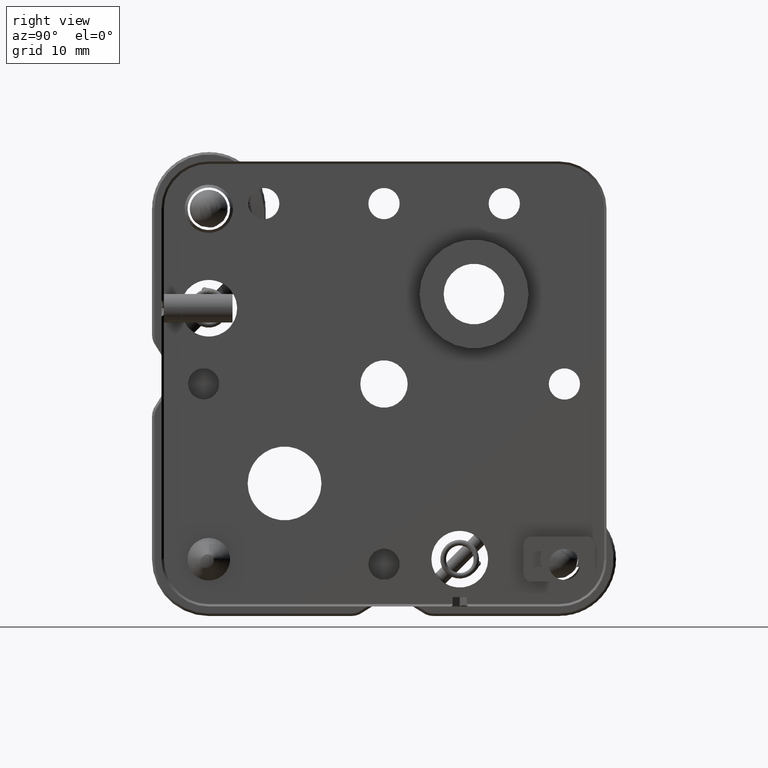
[diagram: clean part render]
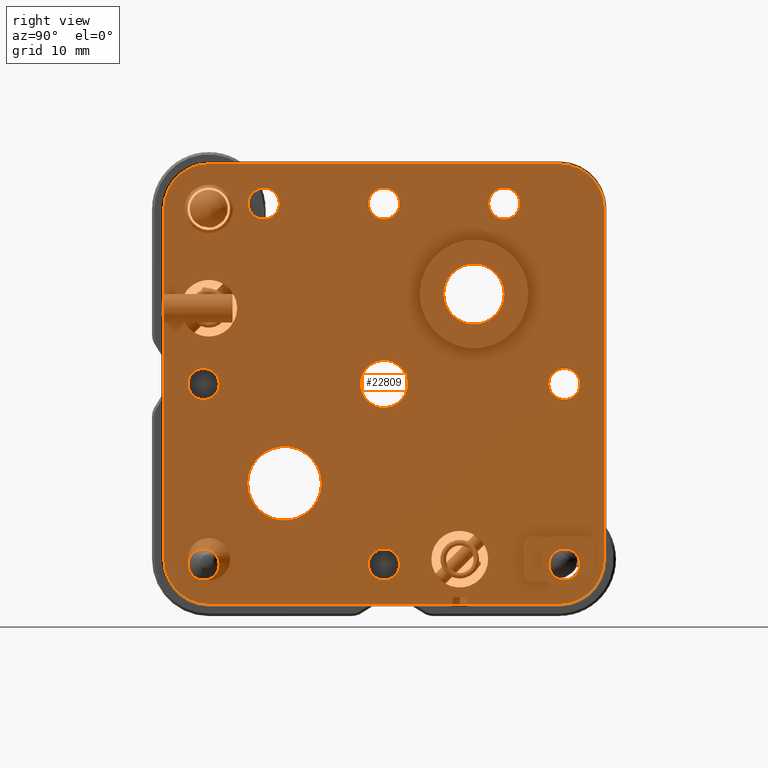
[diagram: same view with one face highlighted and labeled with its STEP entity id]
A machine part, right view. The second image highlights one B-rep face of the part: STEP entity #22809.
In plain terms, the highlighted planar face has unit normal (-1, 0, 0).
Its self-contained STEP definition (entity closure, byte-faithful):
#46 = CARTESIAN_POINT ( 'NONE',  ( 16.49606781186547622, -2.312573812038260277E-14, -19.05000000000001137 ) ) ;
#281 = CIRCLE ( 'NONE', #17914, 1.649999999999993472 ) ;
#306 = FACE_BOUND ( 'NONE', #23714, .T. ) ;
#361 = VERTEX_POINT ( 'NONE', #3499 ) ;
#395 = DIRECTION ( 'NONE',  ( 0.000000000000000000, 1.000000000000000000, 0.000000000000000000 ) ) ;
#663 = EDGE_CURVE ( 'NONE', #20995, #20995, #281, .T. ) ;
#1081 = FACE_BOUND ( 'NONE', #27363, .T. ) ;
#1296 = CIRCLE ( 'NONE', #4339, 1.649999999999991696 ) ;
#1429 = ORIENTED_EDGE ( 'NONE', *, *, #21274, .T. ) ;
#1528 = CARTESIAN_POINT ( 'NONE',  ( 16.49606781186546911, -19.05000000000002203, -19.04999999999999361 ) ) ;
#1572 = VERTEX_POINT ( 'NONE', #20653 ) ;
#1841 = CARTESIAN_POINT ( 'NONE',  ( 16.49606781186547977, 19.04999999999997939, -19.04999999999998650 ) ) ;
#2199 = CARTESIAN_POINT ( 'NONE',  ( 16.49606781186546911, -17.40000000000002700, 9.000371959649941786E-15 ) ) ;
#2324 = CIRCLE ( 'NONE', #29435, 1.649999999999993472 ) ;
#2622 = DIRECTION ( 'NONE',  ( 1.000000000000000000, -3.329283005738959424E-16, -6.793094355065668215E-18 ) ) ;
#2789 = EDGE_CURVE ( 'NONE', #8999, #8999, #27521, .T. ) ;
#2831 = ORIENTED_EDGE ( 'NONE', *, *, #9739, .T. ) ;
#2938 = CARTESIAN_POINT ( 'NONE',  ( 16.49606781186548332, 19.04999999999998295, 5.404725120062479417E-16 ) ) ;
#2956 = EDGE_CURVE ( 'NONE', #28841, #28841, #24019, .T. ) ;
#3093 = DIRECTION ( 'NONE',  ( 1.000000000000000000, -3.329283005738959424E-16, -6.793094355065668215E-18 ) ) ;
#3387 = DIRECTION ( 'NONE',  ( 0.000000000000000000, -1.000000000000000000, 0.000000000000000000 ) ) ;
#3405 = EDGE_CURVE ( 'NONE', #18625, #18625, #3864, .T. ) ;
#3420 = DIRECTION ( 'NONE',  ( 0.000000000000000000, -1.000000000000000000, 0.000000000000000000 ) ) ;
#3499 = CARTESIAN_POINT ( 'NONE',  ( 16.49606781186865234, 18.49999999999998579, 23.24999999997225686 ) ) ;
#3638 = AXIS2_PLACEMENT_3D ( 'NONE', #46, #24325, #19295 ) ;
#3808 = EDGE_LOOP ( 'NONE', ( #28890 ) ) ;
#3844 = VECTOR ( 'NONE', #22414, 1000.000000000000000 ) ;
#3864 = CIRCLE ( 'NONE', #23507, 1.649999999999991696 ) ;
#4102 = EDGE_LOOP ( 'NONE', ( #18049 ) ) ;
#4225 = CARTESIAN_POINT ( 'NONE',  ( 16.49606781186548332, 20.69999999999997442, 5.404725120062479417E-16 ) ) ;
#4339 = AXIS2_PLACEMENT_3D ( 'NONE', #2938, #3093, #15084 ) ;
#4618 = DIRECTION ( 'NONE',  ( 0.000000000000000000, -1.000000000000000000, 0.000000000000000000 ) ) ;
#5022 = FACE_BOUND ( 'NONE', #11600, .T. ) ;
#5091 = EDGE_LOOP ( 'NONE', ( #6966 ) ) ;
#5140 = CARTESIAN_POINT ( 'NONE',  ( 16.49606781188433402, -23.24999999998115285, -18.49999999999998934 ) ) ;
#5196 = CIRCLE ( 'NONE', #22848, 1.649999999999993028 ) ;
#5686 = CARTESIAN_POINT ( 'NONE',  ( 16.49606781186547266, -1.889578839656075383E-14, -23.24999999999999645 ) ) ;
#5759 = EDGE_LOOP ( 'NONE', ( #17986 ) ) ;
#5870 = DIRECTION ( 'NONE',  ( 0.000000000000000000, 1.000000000000000000, 0.000000000000000000 ) ) ;
#6003 = LINE ( 'NONE', #22581, #13199 ) ;
#6115 = PLANE ( 'NONE',  #17378 ) ;
#6155 = DIRECTION ( 'NONE',  ( 3.329283005738955973E-16, 1.000000000000000000, -0.000000000000000000 ) ) ;
#6329 = ORIENTED_EDGE ( 'NONE', *, *, #9911, .T. ) ;
#6594 = ORIENTED_EDGE ( 'NONE', *, *, #20499, .T. ) ;
#6939 = VERTEX_POINT ( 'NONE', #27989 ) ;
#6966 = ORIENTED_EDGE ( 'NONE', *, *, #3405, .T. ) ;
#7056 = ORIENTED_EDGE ( 'NONE', *, *, #8912, .T. ) ;
#7289 = VECTOR ( 'NONE', #20391, 1000.000000000000000 ) ;
#8014 = CARTESIAN_POINT ( 'NONE',  ( 16.49606781186547266, -1.889578839656075383E-14, 4.770422235828094420E-15 ) ) ;
#8150 = AXIS2_PLACEMENT_3D ( 'NONE', #18836, #13936, #3420 ) ;
#8260 = ORIENTED_EDGE ( 'NONE', *, *, #14927, .T. ) ;
#8331 = VERTEX_POINT ( 'NONE', #25049 ) ;
#8391 = AXIS2_PLACEMENT_3D ( 'NONE', #1841, #25962, #21082 ) ;
#8580 = EDGE_LOOP ( 'NONE', ( #13811 ) ) ;
#8904 = AXIS2_PLACEMENT_3D ( 'NONE', #11758, #19184, #23607 ) ;
#8912 = EDGE_CURVE ( 'NONE', #23798, #361, #6003, .T. ) ;
#8999 = VERTEX_POINT ( 'NONE', #14186 ) ;
#9028 = DIRECTION ( 'NONE',  ( 1.000000000000000000, -3.329283005738959424E-16, -6.793094355065668215E-18 ) ) ;
#9084 = EDGE_LOOP ( 'NONE', ( #23426 ) ) ;
#9354 = EDGE_CURVE ( 'NONE', #361, #20872, #9666, .T. ) ;
#9612 = FACE_BOUND ( 'NONE', #4102, .T. ) ;
#9666 = CIRCLE ( 'NONE', #8150, 4.749999999944520823 ) ;
#9739 = EDGE_CURVE ( 'NONE', #12598, #12598, #29820, .T. ) ;
#9740 = CIRCLE ( 'NONE', #21345, 3.899999999999999911 ) ;
#9771 = FACE_BOUND ( 'NONE', #8580, .T. ) ;
#9911 = EDGE_CURVE ( 'NONE', #17569, #23798, #16296, .T. ) ;
#10090 = DIRECTION ( 'NONE',  ( 0.000000000000000000, 1.000000000000000000, 0.000000000000000000 ) ) ;
#10134 = EDGE_CURVE ( 'NONE', #17490, #17490, #13730, .T. ) ;
#10768 = AXIS2_PLACEMENT_3D ( 'NONE', #26227, #11719, #4618 ) ;
#10806 = DIRECTION ( 'NONE',  ( -1.000000000000000000, 3.469446952047667116E-16, 6.018531076536426284E-32 ) ) ;
#10887 = EDGE_CURVE ( 'NONE', #6939, #23884, #20289, .T. ) ;
#11333 = CIRCLE ( 'NONE', #12336, 4.749999999944520823 ) ;
#11600 = EDGE_LOOP ( 'NONE', ( #6594 ) ) ;
#11717 = CARTESIAN_POINT ( 'NONE',  ( 16.49606781186706783, 23.24999999999839417, 18.49999999999999645 ) ) ;
#11719 = DIRECTION ( 'NONE',  ( -1.000000000000000000, 3.469446951984229881E-16, 0.000000000000000000 ) ) ;
#11758 = CARTESIAN_POINT ( 'NONE',  ( 16.49606781186547977, 9.499999999999982236, 9.500000000000003553 ) ) ;
#12121 = FACE_BOUND ( 'NONE', #26108, .T. ) ;
#12284 = FACE_BOUND ( 'NONE', #3808, .T. ) ;
#12285 = CARTESIAN_POINT ( 'NONE',  ( 16.49606781186546911, -17.40000000000002345, -19.04999999999999361 ) ) ;
#12336 = AXIS2_PLACEMENT_3D ( 'NONE', #15060, #10806, #3387 ) ;
#12449 = EDGE_CURVE ( 'NONE', #24739, #24739, #25832, .T. ) ;
#12598 = VERTEX_POINT ( 'NONE', #26632 ) ;
#12653 = CARTESIAN_POINT ( 'NONE',  ( 16.49606781186547266, -1.889578839656075383E-14, 4.770422235828094420E-15 ) ) ;
#13199 = VECTOR ( 'NONE', #6155, 1000.000000000000000 ) ;
#13303 = EDGE_LOOP ( 'NONE', ( #28068 ) ) ;
#13531 = CARTESIAN_POINT ( 'NONE',  ( 16.49606781188434113, -18.50000000000001066, 23.24999999998112088 ) ) ;
#13730 = CIRCLE ( 'NONE', #28815, 2.499999999999998668 ) ;
#13811 = ORIENTED_EDGE ( 'NONE', *, *, #24575, .T. ) ;
#13936 = DIRECTION ( 'NONE',  ( -1.000000000000000000, 3.469446952047659228E-16, 6.018531076536395630E-32 ) ) ;
#14024 = ORIENTED_EDGE ( 'NONE', *, *, #28806, .T. ) ;
#14052 = DIRECTION ( 'NONE',  ( -1.000000000000000000, 3.469446951984244672E-16, 0.000000000000000000 ) ) ;
#14186 = CARTESIAN_POINT ( 'NONE',  ( 16.49606781186547977, 20.69999999999997797, -19.04999999999998650 ) ) ;
#14218 = AXIS2_PLACEMENT_3D ( 'NONE', #26041, #14052, #21314 ) ;
#14276 = VECTOR ( 'NONE', #28802, 1000.000000000000000 ) ;
#14393 = ORIENTED_EDGE ( 'NONE', *, *, #9354, .T. ) ;
#14608 = LINE ( 'NONE', #19356, #14276 ) ;
#14696 = EDGE_CURVE ( 'NONE', #17167, #17167, #9740, .T. ) ;
#14927 = EDGE_CURVE ( 'NONE', #20872, #1572, #14608, .T. ) ;
#15060 = CARTESIAN_POINT ( 'NONE',  ( 16.49606781186863813, 18.49999999999996803, -18.50000000000000355 ) ) ;
#15084 = DIRECTION ( 'NONE',  ( 0.000000000000000000, 1.000000000000000000, 0.000000000000000000 ) ) ;
#15659 = EDGE_LOOP ( 'NONE', ( #8260, #14024, #23852, #25000, #1429, #6329, #7056, #14393 ) ) ;
#15789 = CARTESIAN_POINT ( 'NONE',  ( 16.49606781186863813, 18.49999999999996803, -23.24999999997225686 ) ) ;
#15885 = DIRECTION ( 'NONE',  ( 1.000000000000000000, -3.329283005738959424E-16, -6.793094355065668215E-18 ) ) ;
#16242 = CARTESIAN_POINT ( 'NONE',  ( 16.49606781186547266, -11.05000000000002203, 19.05000000000002203 ) ) ;
#16296 = CIRCLE ( 'NONE', #10768, 4.750000000001367795 ) ;
#16403 = CARTESIAN_POINT ( 'NONE',  ( 16.49606781186547977, 6.299999999999983835, 9.500000000000003553 ) ) ;
#17070 = LINE ( 'NONE', #27154, #7289 ) ;
#17086 = VERTEX_POINT ( 'NONE', #15789 ) ;
#17167 = VERTEX_POINT ( 'NONE', #17638 ) ;
#17378 = AXIS2_PLACEMENT_3D ( 'NONE', #8014, #22221, #20331 ) ;
#17490 = VERTEX_POINT ( 'NONE', #20025 ) ;
#17569 = VERTEX_POINT ( 'NONE', #29003 ) ;
#17638 = CARTESIAN_POINT ( 'NONE',  ( 16.49606781186547266, -6.600000000000030731, -10.49999999999999645 ) ) ;
#17914 = AXIS2_PLACEMENT_3D ( 'NONE', #18329, #20850, #28094 ) ;
#17986 = ORIENTED_EDGE ( 'NONE', *, *, #2789, .T. ) ;
#18049 = ORIENTED_EDGE ( 'NONE', *, *, #14696, .T. ) ;
#18329 = CARTESIAN_POINT ( 'NONE',  ( 16.49606781186547266, -12.70000000000001528, 19.05000000000002203 ) ) ;
#18625 = VERTEX_POINT ( 'NONE', #2199 ) ;
#18836 = CARTESIAN_POINT ( 'NONE',  ( 16.49606781186865234, 18.49999999999998224, 18.49999999999999645 ) ) ;
#19184 = DIRECTION ( 'NONE',  ( 1.000000000000000000, -3.329283005738959424E-16, -6.793094355065668215E-18 ) ) ;
#19295 = DIRECTION ( 'NONE',  ( 0.000000000000000000, 1.000000000000000000, 0.000000000000000000 ) ) ;
#19356 = CARTESIAN_POINT ( 'NONE',  ( 16.49606781186547977, 23.24999999999997513, 4.770422235828094420E-15 ) ) ;
#19551 = FACE_BOUND ( 'NONE', #9084, .T. ) ;
#19859 = FACE_OUTER_BOUND ( 'NONE', #15659, .T. ) ;
#20025 = CARTESIAN_POINT ( 'NONE',  ( 16.49606781186547266, 2.499999999999979572, 4.770422235828094420E-15 ) ) ;
#20289 = CIRCLE ( 'NONE', #14218, 4.750000000001364242 ) ;
#20331 = DIRECTION ( 'NONE',  ( -3.329283005738955973E-16, -1.000000000000000000, 0.000000000000000000 ) ) ;
#20391 = DIRECTION ( 'NONE',  ( 6.793094355065668215E-18, -2.261613359270136103E-33, 1.000000000000000000 ) ) ;
#20499 = EDGE_CURVE ( 'NONE', #8331, #8331, #5196, .T. ) ;
#20579 = ORIENTED_EDGE ( 'NONE', *, *, #10134, .T. ) ;
#20653 = CARTESIAN_POINT ( 'NONE',  ( 16.49606781186863813, 23.24999999997223199, -18.50000000000000355 ) ) ;
#20850 = DIRECTION ( 'NONE',  ( 1.000000000000000000, -3.329283005738959424E-16, -6.793094355065668215E-18 ) ) ;
#20872 = VERTEX_POINT ( 'NONE', #11717 ) ;
#20995 = VERTEX_POINT ( 'NONE', #16242 ) ;
#21082 = DIRECTION ( 'NONE',  ( 0.000000000000000000, 1.000000000000000000, 0.000000000000000000 ) ) ;
#21103 = DIRECTION ( 'NONE',  ( 0.000000000000000000, 1.000000000000000000, 0.000000000000000000 ) ) ;
#21253 = CARTESIAN_POINT ( 'NONE',  ( 16.49606781186547266, -10.50000000000003020, -10.49999999999999645 ) ) ;
#21257 = VERTEX_POINT ( 'NONE', #4225 ) ;
#21274 = EDGE_CURVE ( 'NONE', #23884, #17569, #17070, .T. ) ;
#21314 = DIRECTION ( 'NONE',  ( 0.000000000000000000, -1.000000000000000000, 0.000000000000000000 ) ) ;
#21345 = AXIS2_PLACEMENT_3D ( 'NONE', #21253, #2622, #21103 ) ;
#21752 = FACE_BOUND ( 'NONE', #5091, .T. ) ;
#22221 = DIRECTION ( 'NONE',  ( -1.000000000000000000, 3.329283005738955973E-16, 6.793094355065668215E-18 ) ) ;
#22414 = DIRECTION ( 'NONE',  ( -3.329283005738955973E-16, -1.000000000000000000, 0.000000000000000000 ) ) ;
#22581 = CARTESIAN_POINT ( 'NONE',  ( 16.49606781186547266, -1.889578839656075383E-14, 23.24999999999999645 ) ) ;
#22809 = ADVANCED_FACE ( 'NONE', ( #23966, #9612, #19551, #12121, #21752, #9771, #12284, #26631, #5022, #306, #1081, #19859 ), #6115, .T. ) ;
#22848 = AXIS2_PLACEMENT_3D ( 'NONE', #29083, #24359, #395 ) ;
#23426 = ORIENTED_EDGE ( 'NONE', *, *, #12449, .T. ) ;
#23507 = AXIS2_PLACEMENT_3D ( 'NONE', #24276, #24745, #10090 ) ;
#23547 = DIRECTION ( 'NONE',  ( 0.000000000000000000, 1.000000000000000000, 0.000000000000000000 ) ) ;
#23607 = DIRECTION ( 'NONE',  ( 0.000000000000000000, -1.000000000000000000, 0.000000000000000000 ) ) ;
#23631 = CARTESIAN_POINT ( 'NONE',  ( 16.49606781186547977, 14.34999999999997655, 19.05000000000001492 ) ) ;
#23714 = EDGE_LOOP ( 'NONE', ( #20579 ) ) ;
#23798 = VERTEX_POINT ( 'NONE', #13531 ) ;
#23852 = ORIENTED_EDGE ( 'NONE', *, *, #26794, .T. ) ;
#23884 = VERTEX_POINT ( 'NONE', #5140 ) ;
#23966 = FACE_BOUND ( 'NONE', #5759, .T. ) ;
#24019 = CIRCLE ( 'NONE', #8904, 3.199999999999998845 ) ;
#24276 = CARTESIAN_POINT ( 'NONE',  ( 16.49606781186546911, -19.05000000000001847, 9.000371959649941786E-15 ) ) ;
#24325 = DIRECTION ( 'NONE',  ( 1.000000000000000000, -3.329283005738959424E-16, -6.793094355065668215E-18 ) ) ;
#24359 = DIRECTION ( 'NONE',  ( 1.000000000000000000, -3.329283005738959424E-16, -6.793094355065668215E-18 ) ) ;
#24575 = EDGE_CURVE ( 'NONE', #21257, #21257, #1296, .T. ) ;
#24739 = VERTEX_POINT ( 'NONE', #12285 ) ;
#24745 = DIRECTION ( 'NONE',  ( 1.000000000000000000, -3.329283005738959424E-16, -6.793094355065668215E-18 ) ) ;
#25000 = ORIENTED_EDGE ( 'NONE', *, *, #10887, .T. ) ;
#25049 = CARTESIAN_POINT ( 'NONE',  ( 16.49606781186547622, 1.649999999999978373, 19.05000000000001847 ) ) ;
#25333 = AXIS2_PLACEMENT_3D ( 'NONE', #1528, #15885, #30541 ) ;
#25742 = CARTESIAN_POINT ( 'NONE',  ( 16.49606781186547977, 12.69999999999998330, 19.05000000000001492 ) ) ;
#25832 = CIRCLE ( 'NONE', #25333, 1.649999999999998579 ) ;
#25962 = DIRECTION ( 'NONE',  ( 1.000000000000000000, -3.329283005738959424E-16, -6.793094355065668215E-18 ) ) ;
#26041 = CARTESIAN_POINT ( 'NONE',  ( 16.49606781190319893, -18.50000000000003197, -18.49999999999999289 ) ) ;
#26108 = EDGE_LOOP ( 'NONE', ( #2831 ) ) ;
#26227 = CARTESIAN_POINT ( 'NONE',  ( 16.49606781190321669, -18.50000000000001066, 18.50000000000000355 ) ) ;
#26454 = EDGE_CURVE ( 'NONE', #28189, #28189, #2324, .T. ) ;
#26515 = LINE ( 'NONE', #5686, #3844 ) ;
#26631 = FACE_BOUND ( 'NONE', #13303, .T. ) ;
#26632 = CARTESIAN_POINT ( 'NONE',  ( 16.49606781186547622, 1.649999999999969935, -19.05000000000001137 ) ) ;
#26794 = EDGE_CURVE ( 'NONE', #17086, #6939, #26515, .T. ) ;
#27154 = CARTESIAN_POINT ( 'NONE',  ( 16.49606781186546556, -23.25000000000002487, 4.770422235828094420E-15 ) ) ;
#27311 = DIRECTION ( 'NONE',  ( 1.000000000000000000, -3.329283005738959424E-16, -6.793094355065668215E-18 ) ) ;
#27363 = EDGE_LOOP ( 'NONE', ( #29802 ) ) ;
#27521 = CIRCLE ( 'NONE', #8391, 1.649999999999998579 ) ;
#27989 = CARTESIAN_POINT ( 'NONE',  ( 16.49606781190366434, -18.50000000000002842, -23.24999999999112532 ) ) ;
#28068 = ORIENTED_EDGE ( 'NONE', *, *, #663, .T. ) ;
#28094 = DIRECTION ( 'NONE',  ( 0.000000000000000000, 1.000000000000000000, 0.000000000000000000 ) ) ;
#28189 = VERTEX_POINT ( 'NONE', #23631 ) ;
#28802 = DIRECTION ( 'NONE',  ( -6.793094355065668215E-18, 2.261613359270136103E-33, -1.000000000000000000 ) ) ;
#28806 = EDGE_CURVE ( 'NONE', #1572, #17086, #11333, .T. ) ;
#28815 = AXIS2_PLACEMENT_3D ( 'NONE', #12653, #27311, #5870 ) ;
#28841 = VERTEX_POINT ( 'NONE', #16403 ) ;
#28890 = ORIENTED_EDGE ( 'NONE', *, *, #26454, .T. ) ;
#29003 = CARTESIAN_POINT ( 'NONE',  ( 16.49606781190367144, -23.24999999999114308, 18.50000000000000355 ) ) ;
#29083 = CARTESIAN_POINT ( 'NONE',  ( 16.49606781186547622, -1.466583867273890173E-14, 19.05000000000001847 ) ) ;
#29435 = AXIS2_PLACEMENT_3D ( 'NONE', #25742, #9028, #23547 ) ;
#29802 = ORIENTED_EDGE ( 'NONE', *, *, #2956, .T. ) ;
#29820 = CIRCLE ( 'NONE', #3638, 1.649999999999993028 ) ;
#30541 = DIRECTION ( 'NONE',  ( 0.000000000000000000, 1.000000000000000000, 0.000000000000000000 ) ) ;